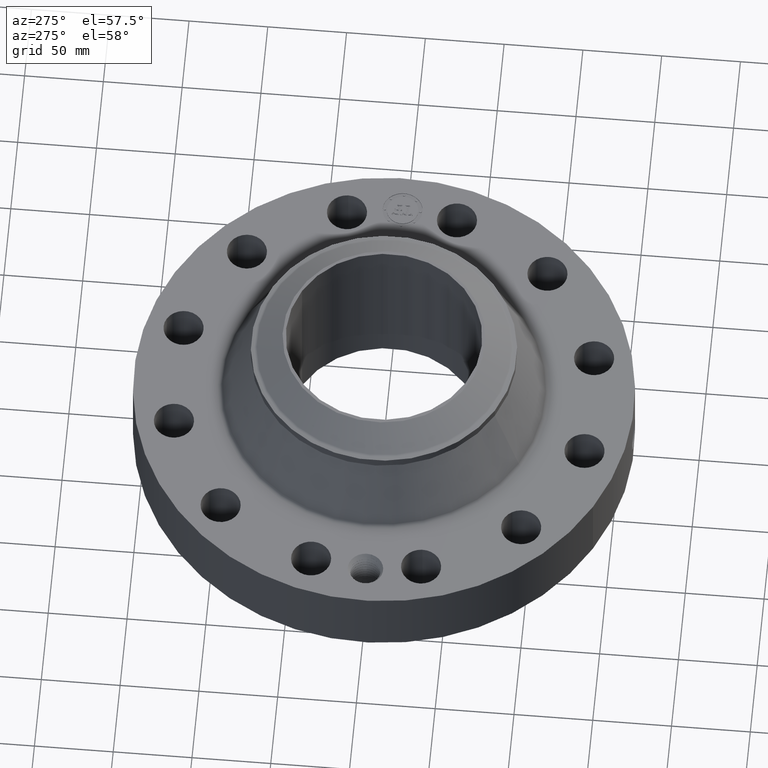
[diagram: clean part render]
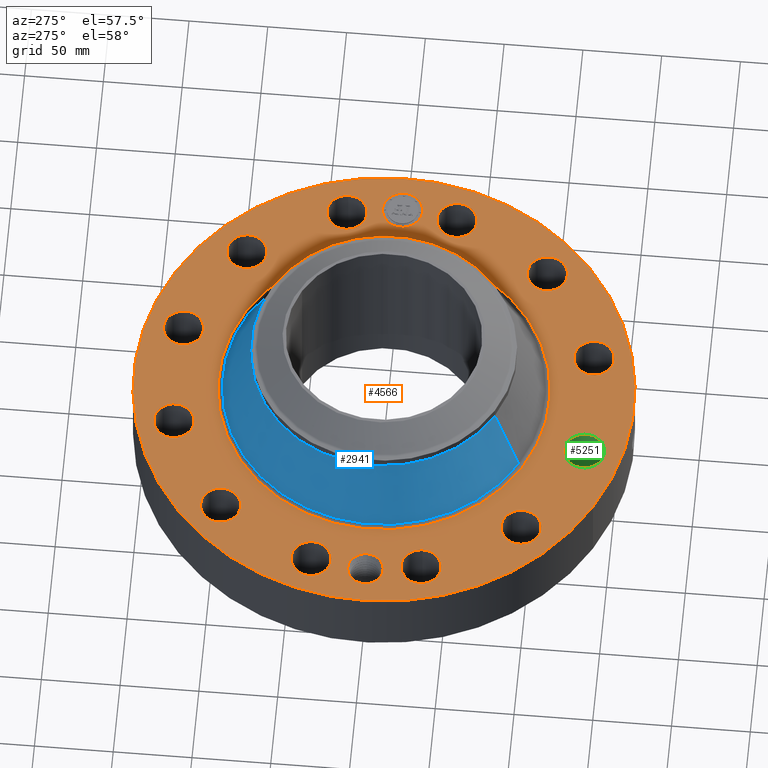
[diagram: same view with three faces highlighted in distinct colors, each labeled with its STEP entity id]
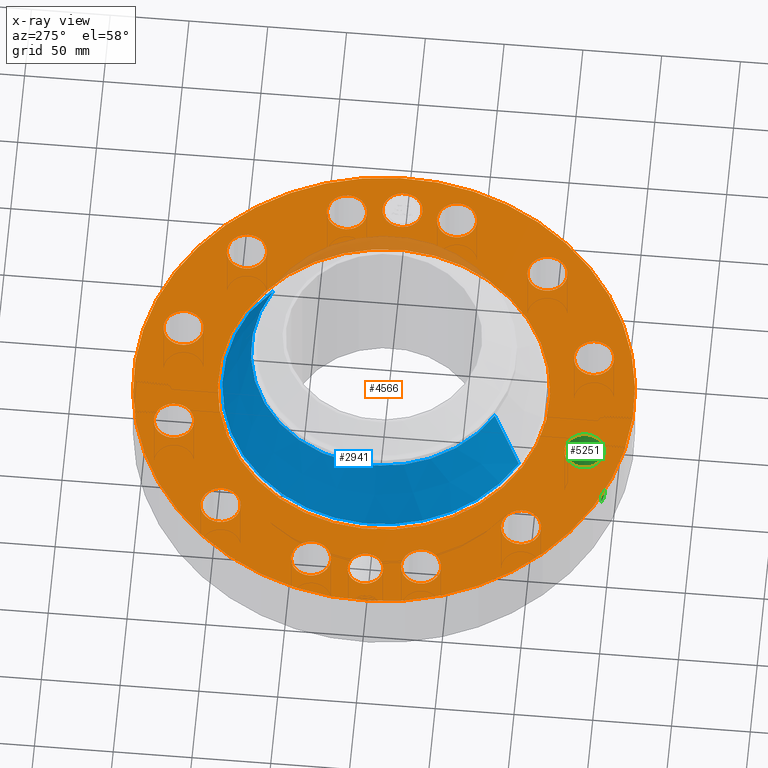
[diagram: x-ray of the same camera — body ghosted, the three highlighted faces saturated]
A machine part, auxiliary view with three faces highlighted in distinct colors.
The next image is the same camera in x-ray (body ghosted, the three faces saturated) — at least one of them is partly hidden behind the body in this view.
Their STEP definitions:

[orange] entity #4566 — the highlighted planar face has unit normal (0, 0, -1).
#3574=AXIS2_PLACEMENT_3D('Circle Axis2P3D',#3572,#3573,$) ;
#3600=AXIS2_PLACEMENT_3D('Circle Axis2P3D',#3598,#3599,$) ;
#4290=AXIS2_PLACEMENT_3D('Plane Axis2P3D',#4287,#4288,#4289) ;
#4294=AXIS2_PLACEMENT_3D('Circle Axis2P3D',#4292,#4293,$) ;
#4303=AXIS2_PLACEMENT_3D('Circle Axis2P3D',#4301,#4302,$) ;
#4312=AXIS2_PLACEMENT_3D('Circle Axis2P3D',#4310,#4311,$) ;
#4321=AXIS2_PLACEMENT_3D('Circle Axis2P3D',#4319,#4320,$) ;
#4330=AXIS2_PLACEMENT_3D('Circle Axis2P3D',#4328,#4329,$) ;
#4339=AXIS2_PLACEMENT_3D('Circle Axis2P3D',#4337,#4338,$) ;
#4352=AXIS2_PLACEMENT_3D('Circle Axis2P3D',#4350,#4351,$) ;
#4361=AXIS2_PLACEMENT_3D('Circle Axis2P3D',#4359,#4360,$) ;
#4370=AXIS2_PLACEMENT_3D('Circle Axis2P3D',#4368,#4369,$) ;
#4379=AXIS2_PLACEMENT_3D('Circle Axis2P3D',#4377,#4378,$) ;
#4388=AXIS2_PLACEMENT_3D('Circle Axis2P3D',#4386,#4387,$) ;
#4397=AXIS2_PLACEMENT_3D('Circle Axis2P3D',#4395,#4396,$) ;
#4406=AXIS2_PLACEMENT_3D('Circle Axis2P3D',#4404,#4405,$) ;
#4415=AXIS2_PLACEMENT_3D('Circle Axis2P3D',#4413,#4414,$) ;
#4424=AXIS2_PLACEMENT_3D('Circle Axis2P3D',#4422,#4423,$) ;
#4433=AXIS2_PLACEMENT_3D('Circle Axis2P3D',#4431,#4432,$) ;
#4442=AXIS2_PLACEMENT_3D('Circle Axis2P3D',#4440,#4441,$) ;
#4451=AXIS2_PLACEMENT_3D('Circle Axis2P3D',#4449,#4450,$) ;
#4460=AXIS2_PLACEMENT_3D('Circle Axis2P3D',#4458,#4459,$) ;
#4469=AXIS2_PLACEMENT_3D('Circle Axis2P3D',#4467,#4468,$) ;
#4478=AXIS2_PLACEMENT_3D('Circle Axis2P3D',#4476,#4477,$) ;
#4487=AXIS2_PLACEMENT_3D('Circle Axis2P3D',#4485,#4486,$) ;
#4496=AXIS2_PLACEMENT_3D('Circle Axis2P3D',#4494,#4495,$) ;
#4505=AXIS2_PLACEMENT_3D('Circle Axis2P3D',#4503,#4504,$) ;
#4514=AXIS2_PLACEMENT_3D('Circle Axis2P3D',#4512,#4513,$) ;
#4523=AXIS2_PLACEMENT_3D('Circle Axis2P3D',#4521,#4522,$) ;
#4532=AXIS2_PLACEMENT_3D('Circle Axis2P3D',#4530,#4531,$) ;
#4541=AXIS2_PLACEMENT_3D('Circle Axis2P3D',#4539,#4540,$) ;
#4550=AXIS2_PLACEMENT_3D('Circle Axis2P3D',#4548,#4549,$) ;
#4559=AXIS2_PLACEMENT_3D('Circle Axis2P3D',#4557,#4558,$) ;
#3572=CARTESIAN_POINT('Axis2P3D Location',(0.,0.,1.93200000001)) ;
#3576=CARTESIAN_POINT('Vertex',(-1.98379266045,-3.63130810738,1.93200000001)) ;
#3578=CARTESIAN_POINT('Vertex',(1.98379266045,3.63130810738,1.93200000001)) ;
#3598=CARTESIAN_POINT('Axis2P3D Location',(0.,0.,1.93200000001)) ;
#4287=CARTESIAN_POINT('Axis2P3D Location',(0.,6.25000000003,1.93200000001)) ;
#4292=CARTESIAN_POINT('Axis2P3D Location',(0.,0.,1.93200000001)) ;
#4296=CARTESIAN_POINT('Vertex',(2.99640961629,5.48489101184,1.93200000001)) ;
#4298=CARTESIAN_POINT('Vertex',(-2.99640961629,-5.48489101184,1.93200000001)) ;
#4301=CARTESIAN_POINT('Axis2P3D Location',(0.,0.,1.93200000001)) ;
#4310=CARTESIAN_POINT('Axis2P3D Location',(-5.31000000002,0.,1.93200000001)) ;
#4314=CARTESIAN_POINT('Vertex',(-5.69859355843,0.212289628495,1.93200000001)) ;
#4316=CARTESIAN_POINT('Vertex',(-4.92140644161,-0.212289628495,1.93200000001)) ;
#4319=CARTESIAN_POINT('Axis2P3D Location',(-5.31000000002,0.,1.93200000001)) ;
#4328=CARTESIAN_POINT('Axis2P3D Location',(5.12906613762,-1.3743291295,1.93200000001)) ;
#4332=CARTESIAN_POINT('Vertex',(4.69027485667,-1.1346163602,1.93200000001)) ;
#4334=CARTESIAN_POINT('Vertex',(5.56785741856,-1.6140418988,1.93200000001)) ;
#4337=CARTESIAN_POINT('Axis2P3D Location',(5.12906613762,-1.3743291295,1.93200000001)) ;
#4350=CARTESIAN_POINT('Axis2P3D Location',(3.75473700812,-3.75473700812,1.93200000001)) ;
#4354=CARTESIAN_POINT('Vertex',(4.01488501972,-4.18172999642,1.93200000001)) ;
#4356=CARTESIAN_POINT('Vertex',(3.49458899651,-3.32774401981,1.93200000001)) ;
#4359=CARTESIAN_POINT('Axis2P3D Location',(3.75473700812,-3.75473700812,1.93200000001)) ;
#4368=CARTESIAN_POINT('Axis2P3D Location',(1.3743291295,-5.12906613762,1.93200000001)) ;
#4372=CARTESIAN_POINT('Vertex',(1.38612742215,-5.62892691853,1.93200000001)) ;
#4374=CARTESIAN_POINT('Vertex',(1.36253083685,-4.6292053567,1.93200000001)) ;
#4377=CARTESIAN_POINT('Axis2P3D Location',(1.3743291295,-5.12906613762,1.93200000001)) ;
#4386=CARTESIAN_POINT('Axis2P3D Location',(-1.3743291295,-5.12906613762,1.93200000001)) ;
#4390=CARTESIAN_POINT('Vertex',(-1.6140418988,-5.56785741856,1.93200000001)) ;
#4392=CARTESIAN_POINT('Vertex',(-1.1346163602,-4.69027485667,1.93200000001)) ;
#4395=CARTESIAN_POINT('Axis2P3D Location',(-1.3743291295,-5.12906613762,1.93200000001)) ;
#4404=CARTESIAN_POINT('Axis2P3D Location',(-3.75473700812,-3.75473700812,1.93200000001)) ;
#4408=CARTESIAN_POINT('Vertex',(-4.18172999642,-4.01488501972,1.93200000001)) ;
#4410=CARTESIAN_POINT('Vertex',(-3.32774401981,-3.49458899651,1.93200000001)) ;
#4413=CARTESIAN_POINT('Axis2P3D Location',(-3.75473700812,-3.75473700812,1.93200000001)) ;
#4422=CARTESIAN_POINT('Axis2P3D Location',(-5.12906613762,-1.3743291295,1.93200000001)) ;
#4426=CARTESIAN_POINT('Vertex',(-5.62892691853,-1.38612742215,1.93200000001)) ;
#4428=CARTESIAN_POINT('Vertex',(-4.6292053567,-1.36253083685,1.93200000001)) ;
#4431=CARTESIAN_POINT('Axis2P3D Location',(-5.12906613762,-1.3743291295,1.93200000001)) ;
#4440=CARTESIAN_POINT('Axis2P3D Location',(-5.12906613762,1.3743291295,1.93200000001)) ;
#4444=CARTESIAN_POINT('Vertex',(-5.56785741856,1.6140418988,1.93200000001)) ;
#4446=CARTESIAN_POINT('Vertex',(-4.69027485667,1.1346163602,1.93200000001)) ;
#4449=CARTESIAN_POINT('Axis2P3D Location',(-5.12906613762,1.3743291295,1.93200000001)) ;
#4458=CARTESIAN_POINT('Axis2P3D Location',(-3.75473700812,3.75473700812,1.93200000001)) ;
#4462=CARTESIAN_POINT('Vertex',(-4.01488501972,4.18172999642,1.93200000001)) ;
#4464=CARTESIAN_POINT('Vertex',(-3.49458899651,3.32774401981,1.93200000001)) ;
#4467=CARTESIAN_POINT('Axis2P3D Location',(-3.75473700812,3.75473700812,1.93200000001)) ;
#4476=CARTESIAN_POINT('Axis2P3D Location',(-1.3743291295,5.12906613762,1.93200000001)) ;
#4480=CARTESIAN_POINT('Vertex',(-1.38612742215,5.62892691853,1.93200000001)) ;
#4482=CARTESIAN_POINT('Vertex',(-1.36253083685,4.6292053567,1.93200000001)) ;
#4485=CARTESIAN_POINT('Axis2P3D Location',(-1.3743291295,5.12906613762,1.93200000001)) ;
#4494=CARTESIAN_POINT('Axis2P3D Location',(1.3743291295,5.12906613762,1.93200000001)) ;
#4498=CARTESIAN_POINT('Vertex',(1.6140418988,5.56785741856,1.93200000001)) ;
#4500=CARTESIAN_POINT('Vertex',(1.1346163602,4.69027485667,1.93200000001)) ;
#4503=CARTESIAN_POINT('Axis2P3D Location',(1.3743291295,5.12906613762,1.93200000001)) ;
#4512=CARTESIAN_POINT('Axis2P3D Location',(3.75473700812,3.75473700812,1.93200000001)) ;
#4516=CARTESIAN_POINT('Vertex',(4.18172999642,4.01488501972,1.93200000001)) ;
#4518=CARTESIAN_POINT('Vertex',(3.32774401981,3.49458899651,1.93200000001)) ;
#4521=CARTESIAN_POINT('Axis2P3D Location',(3.75473700812,3.75473700812,1.93200000001)) ;
#4530=CARTESIAN_POINT('Axis2P3D Location',(5.12906613762,1.3743291295,1.93200000001)) ;
#4534=CARTESIAN_POINT('Vertex',(5.62892691853,1.38612742215,1.93200000001)) ;
#4536=CARTESIAN_POINT('Vertex',(4.6292053567,1.36253083685,1.93200000001)) ;
#4539=CARTESIAN_POINT('Axis2P3D Location',(5.12906613762,1.3743291295,1.93200000001)) ;
#4548=CARTESIAN_POINT('Axis2P3D Location',(5.31000000002,0.,1.93200000001)) ;
#4552=CARTESIAN_POINT('Vertex',(5.31000000002,0.499999995002,1.93200000001)) ;
#4554=CARTESIAN_POINT('Vertex',(5.31000000002,-0.499999995002,1.93200000001)) ;
#4557=CARTESIAN_POINT('Axis2P3D Location',(5.31000000002,0.,1.93200000001)) ;
#3573=DIRECTION('Axis2P3D Direction',(0.,0.,-0.0393700787402)) ;
#3599=DIRECTION('Axis2P3D Direction',(0.,0.,-0.0393700787402)) ;
#4288=DIRECTION('Axis2P3D Direction',(0.,0.,-0.0393700787402)) ;
#4289=DIRECTION('Axis2P3D XDirection',(0.0393700787402,0.,0.)) ;
#4293=DIRECTION('Axis2P3D Direction',(0.,0.,-0.0393700787402)) ;
#4302=DIRECTION('Axis2P3D Direction',(0.,0.,-0.0393700787402)) ;
#4311=DIRECTION('Axis2P3D Direction',(0.,0.,-0.0393700787402)) ;
#4320=DIRECTION('Axis2P3D Direction',(0.,0.,-0.0393700787402)) ;
#4329=DIRECTION('Axis2P3D Direction',(0.,0.,-0.0393700787402)) ;
#4338=DIRECTION('Axis2P3D Direction',(0.,0.,-0.0393700787402)) ;
#4351=DIRECTION('Axis2P3D Direction',(0.,0.,-0.0393700787402)) ;
#4360=DIRECTION('Axis2P3D Direction',(0.,0.,-0.0393700787402)) ;
#4369=DIRECTION('Axis2P3D Direction',(0.,0.,-0.0393700787402)) ;
#4378=DIRECTION('Axis2P3D Direction',(0.,0.,-0.0393700787402)) ;
#4387=DIRECTION('Axis2P3D Direction',(0.,0.,-0.0393700787402)) ;
#4396=DIRECTION('Axis2P3D Direction',(0.,0.,-0.0393700787402)) ;
#4405=DIRECTION('Axis2P3D Direction',(0.,0.,-0.0393700787402)) ;
#4414=DIRECTION('Axis2P3D Direction',(0.,0.,-0.0393700787402)) ;
#4423=DIRECTION('Axis2P3D Direction',(0.,0.,-0.0393700787402)) ;
#4432=DIRECTION('Axis2P3D Direction',(0.,0.,-0.0393700787402)) ;
#4441=DIRECTION('Axis2P3D Direction',(0.,0.,-0.0393700787402)) ;
#4450=DIRECTION('Axis2P3D Direction',(0.,0.,-0.0393700787402)) ;
#4459=DIRECTION('Axis2P3D Direction',(0.,0.,-0.0393700787402)) ;
#4468=DIRECTION('Axis2P3D Direction',(0.,0.,-0.0393700787402)) ;
#4477=DIRECTION('Axis2P3D Direction',(0.,0.,-0.0393700787402)) ;
#4486=DIRECTION('Axis2P3D Direction',(0.,0.,-0.0393700787402)) ;
#4495=DIRECTION('Axis2P3D Direction',(0.,0.,-0.0393700787402)) ;
#4504=DIRECTION('Axis2P3D Direction',(0.,0.,-0.0393700787402)) ;
#4513=DIRECTION('Axis2P3D Direction',(0.,0.,-0.0393700787402)) ;
#4522=DIRECTION('Axis2P3D Direction',(0.,0.,-0.0393700787402)) ;
#4531=DIRECTION('Axis2P3D Direction',(0.,0.,-0.0393700787402)) ;
#4540=DIRECTION('Axis2P3D Direction',(0.,0.,-0.0393700787402)) ;
#4549=DIRECTION('Axis2P3D Direction',(0.,0.,-0.0393700787402)) ;
#4558=DIRECTION('Axis2P3D Direction',(0.,0.,-0.0393700787402)) ;
#4307=ORIENTED_EDGE('',*,*,#4300,.F.) ;
#4308=ORIENTED_EDGE('',*,*,#4305,.F.) ;
#4325=ORIENTED_EDGE('',*,*,#4318,.T.) ;
#4326=ORIENTED_EDGE('',*,*,#4323,.T.) ;
#4343=ORIENTED_EDGE('',*,*,#4336,.T.) ;
#4344=ORIENTED_EDGE('',*,*,#4341,.T.) ;
#4347=ORIENTED_EDGE('',*,*,#3580,.T.) ;
#4348=ORIENTED_EDGE('',*,*,#3602,.T.) ;
#4365=ORIENTED_EDGE('',*,*,#4358,.T.) ;
#4366=ORIENTED_EDGE('',*,*,#4363,.T.) ;
#4383=ORIENTED_EDGE('',*,*,#4376,.T.) ;
#4384=ORIENTED_EDGE('',*,*,#4381,.T.) ;
#4401=ORIENTED_EDGE('',*,*,#4394,.T.) ;
#4402=ORIENTED_EDGE('',*,*,#4399,.T.) ;
#4419=ORIENTED_EDGE('',*,*,#4412,.T.) ;
#4420=ORIENTED_EDGE('',*,*,#4417,.T.) ;
#4437=ORIENTED_EDGE('',*,*,#4430,.T.) ;
#4438=ORIENTED_EDGE('',*,*,#4435,.T.) ;
#4455=ORIENTED_EDGE('',*,*,#4448,.T.) ;
#4456=ORIENTED_EDGE('',*,*,#4453,.T.) ;
#4473=ORIENTED_EDGE('',*,*,#4466,.T.) ;
#4474=ORIENTED_EDGE('',*,*,#4471,.T.) ;
#4491=ORIENTED_EDGE('',*,*,#4484,.T.) ;
#4492=ORIENTED_EDGE('',*,*,#4489,.T.) ;
#4509=ORIENTED_EDGE('',*,*,#4502,.T.) ;
#4510=ORIENTED_EDGE('',*,*,#4507,.T.) ;
#4527=ORIENTED_EDGE('',*,*,#4520,.T.) ;
#4528=ORIENTED_EDGE('',*,*,#4525,.T.) ;
#4545=ORIENTED_EDGE('',*,*,#4538,.T.) ;
#4546=ORIENTED_EDGE('',*,*,#4543,.T.) ;
#4563=ORIENTED_EDGE('',*,*,#4556,.T.) ;
#4564=ORIENTED_EDGE('',*,*,#4561,.T.) ;
#4327=FACE_BOUND('',#4324,.T.) ;
#4345=FACE_BOUND('',#4342,.T.) ;
#4349=FACE_BOUND('',#4346,.T.) ;
#4367=FACE_BOUND('',#4364,.T.) ;
#4385=FACE_BOUND('',#4382,.T.) ;
#4403=FACE_BOUND('',#4400,.T.) ;
#4421=FACE_BOUND('',#4418,.T.) ;
#4439=FACE_BOUND('',#4436,.T.) ;
#4457=FACE_BOUND('',#4454,.T.) ;
#4475=FACE_BOUND('',#4472,.T.) ;
#4493=FACE_BOUND('',#4490,.T.) ;
#4511=FACE_BOUND('',#4508,.T.) ;
#4529=FACE_BOUND('',#4526,.T.) ;
#4547=FACE_BOUND('',#4544,.T.) ;
#4565=FACE_BOUND('',#4562,.T.) ;
#4566=ADVANCED_FACE('PartBody',(#4309,#4327,#4345,#4349,#4367,#4385,#4403,#4421,#4439,#4457,#4475,#4493,#4511,#4529,#4547,#4565),#4291,.F.) ;
#3575=CIRCLE('generated circle',#3574,4.1378535366) ;
#3601=CIRCLE('generated circle',#3600,4.1378535366) ;
#4295=CIRCLE('generated circle',#4294,6.25000000003) ;
#4304=CIRCLE('generated circle',#4303,6.25000000003) ;
#4313=CIRCLE('generated circle',#4312,0.442800000002) ;
#4322=CIRCLE('generated circle',#4321,0.442800000002) ;
#4331=CIRCLE('generated circle',#4330,0.500000000002) ;
#4340=CIRCLE('generated circle',#4339,0.500000000002) ;
#4353=CIRCLE('generated circle',#4352,0.500000000002) ;
#4362=CIRCLE('generated circle',#4361,0.500000000002) ;
#4371=CIRCLE('generated circle',#4370,0.500000000002) ;
#4380=CIRCLE('generated circle',#4379,0.500000000002) ;
#4389=CIRCLE('generated circle',#4388,0.500000000002) ;
#4398=CIRCLE('generated circle',#4397,0.500000000002) ;
#4407=CIRCLE('generated circle',#4406,0.500000000002) ;
#4416=CIRCLE('generated circle',#4415,0.500000000002) ;
#4425=CIRCLE('generated circle',#4424,0.500000000002) ;
#4434=CIRCLE('generated circle',#4433,0.500000000002) ;
#4443=CIRCLE('generated circle',#4442,0.500000000002) ;
#4452=CIRCLE('generated circle',#4451,0.500000000002) ;
#4461=CIRCLE('generated circle',#4460,0.500000000002) ;
#4470=CIRCLE('generated circle',#4469,0.500000000002) ;
#4479=CIRCLE('generated circle',#4478,0.500000000002) ;
#4488=CIRCLE('generated circle',#4487,0.500000000002) ;
#4497=CIRCLE('generated circle',#4496,0.500000000002) ;
#4506=CIRCLE('generated circle',#4505,0.500000000002) ;
#4515=CIRCLE('generated circle',#4514,0.500000000002) ;
#4524=CIRCLE('generated circle',#4523,0.500000000002) ;
#4533=CIRCLE('generated circle',#4532,0.500000000002) ;
#4542=CIRCLE('generated circle',#4541,0.500000000002) ;
#4551=CIRCLE('generated circle',#4550,0.499999995002) ;
#4560=CIRCLE('generated circle',#4559,0.499999995002) ;
#3580=EDGE_CURVE('',#3577,#3579,#3575,.T.) ;
#3602=EDGE_CURVE('',#3579,#3577,#3601,.T.) ;
#4300=EDGE_CURVE('',#4297,#4299,#4295,.T.) ;
#4305=EDGE_CURVE('',#4299,#4297,#4304,.T.) ;
#4318=EDGE_CURVE('',#4315,#4317,#4313,.T.) ;
#4323=EDGE_CURVE('',#4317,#4315,#4322,.T.) ;
#4336=EDGE_CURVE('',#4333,#4335,#4331,.T.) ;
#4341=EDGE_CURVE('',#4335,#4333,#4340,.T.) ;
#4358=EDGE_CURVE('',#4355,#4357,#4353,.T.) ;
#4363=EDGE_CURVE('',#4357,#4355,#4362,.T.) ;
#4376=EDGE_CURVE('',#4373,#4375,#4371,.T.) ;
#4381=EDGE_CURVE('',#4375,#4373,#4380,.T.) ;
#4394=EDGE_CURVE('',#4391,#4393,#4389,.T.) ;
#4399=EDGE_CURVE('',#4393,#4391,#4398,.T.) ;
#4412=EDGE_CURVE('',#4409,#4411,#4407,.T.) ;
#4417=EDGE_CURVE('',#4411,#4409,#4416,.T.) ;
#4430=EDGE_CURVE('',#4427,#4429,#4425,.T.) ;
#4435=EDGE_CURVE('',#4429,#4427,#4434,.T.) ;
#4448=EDGE_CURVE('',#4445,#4447,#4443,.T.) ;
#4453=EDGE_CURVE('',#4447,#4445,#4452,.T.) ;
#4466=EDGE_CURVE('',#4463,#4465,#4461,.T.) ;
#4471=EDGE_CURVE('',#4465,#4463,#4470,.T.) ;
#4484=EDGE_CURVE('',#4481,#4483,#4479,.T.) ;
#4489=EDGE_CURVE('',#4483,#4481,#4488,.T.) ;
#4502=EDGE_CURVE('',#4499,#4501,#4497,.T.) ;
#4507=EDGE_CURVE('',#4501,#4499,#4506,.T.) ;
#4520=EDGE_CURVE('',#4517,#4519,#4515,.T.) ;
#4525=EDGE_CURVE('',#4519,#4517,#4524,.T.) ;
#4538=EDGE_CURVE('',#4535,#4537,#4533,.T.) ;
#4543=EDGE_CURVE('',#4537,#4535,#4542,.T.) ;
#4556=EDGE_CURVE('',#4553,#4555,#4551,.T.) ;
#4561=EDGE_CURVE('',#4555,#4553,#4560,.T.) ;
#4306=EDGE_LOOP('',(#4307,#4308)) ;
#4324=EDGE_LOOP('',(#4325,#4326)) ;
#4342=EDGE_LOOP('',(#4343,#4344)) ;
#4346=EDGE_LOOP('',(#4347,#4348)) ;
#4364=EDGE_LOOP('',(#4365,#4366)) ;
#4382=EDGE_LOOP('',(#4383,#4384)) ;
#4400=EDGE_LOOP('',(#4401,#4402)) ;
#4418=EDGE_LOOP('',(#4419,#4420)) ;
#4436=EDGE_LOOP('',(#4437,#4438)) ;
#4454=EDGE_LOOP('',(#4455,#4456)) ;
#4472=EDGE_LOOP('',(#4473,#4474)) ;
#4490=EDGE_LOOP('',(#4491,#4492)) ;
#4508=EDGE_LOOP('',(#4509,#4510)) ;
#4526=EDGE_LOOP('',(#4527,#4528)) ;
#4544=EDGE_LOOP('',(#4545,#4546)) ;
#4562=EDGE_LOOP('',(#4563,#4564)) ;
#4309=FACE_OUTER_BOUND('',#4306,.T.) ;
#4291=PLANE('',#4290) ;
#3577=VERTEX_POINT('',#3576) ;
#3579=VERTEX_POINT('',#3578) ;
#4297=VERTEX_POINT('',#4296) ;
#4299=VERTEX_POINT('',#4298) ;
#4315=VERTEX_POINT('',#4314) ;
#4317=VERTEX_POINT('',#4316) ;
#4333=VERTEX_POINT('',#4332) ;
#4335=VERTEX_POINT('',#4334) ;
#4355=VERTEX_POINT('',#4354) ;
#4357=VERTEX_POINT('',#4356) ;
#4373=VERTEX_POINT('',#4372) ;
#4375=VERTEX_POINT('',#4374) ;
#4391=VERTEX_POINT('',#4390) ;
#4393=VERTEX_POINT('',#4392) ;
#4409=VERTEX_POINT('',#4408) ;
#4411=VERTEX_POINT('',#4410) ;
#4427=VERTEX_POINT('',#4426) ;
#4429=VERTEX_POINT('',#4428) ;
#4445=VERTEX_POINT('',#4444) ;
#4447=VERTEX_POINT('',#4446) ;
#4463=VERTEX_POINT('',#4462) ;
#4465=VERTEX_POINT('',#4464) ;
#4481=VERTEX_POINT('',#4480) ;
#4483=VERTEX_POINT('',#4482) ;
#4499=VERTEX_POINT('',#4498) ;
#4501=VERTEX_POINT('',#4500) ;
#4517=VERTEX_POINT('',#4516) ;
#4519=VERTEX_POINT('',#4518) ;
#4535=VERTEX_POINT('',#4534) ;
#4537=VERTEX_POINT('',#4536) ;
#4553=VERTEX_POINT('',#4552) ;
#4555=VERTEX_POINT('',#4554) ;

[blue] entity #2941 — the highlighted conical surface has half-angle 24.051 deg.
#2195=AXIS2_PLACEMENT_3D('Circle Axis2P3D',#2193,#2194,$) ;
#2914=AXIS2_PLACEMENT_3D('Cone Axis2P3D',#2911,#2912,#2913) ;
#2918=AXIS2_PLACEMENT_3D('Circle Axis2P3D',#2916,#2917,$) ;
#2190=CARTESIAN_POINT('Vertex',(1.58929566048,2.90918619268,3.60132502705)) ;
#2193=CARTESIAN_POINT('Axis2P3D Location',(0.,0.,3.60132502705)) ;
#2197=CARTESIAN_POINT('Vertex',(-1.58929566048,-2.90918619268,3.60132502705)) ;
#2911=CARTESIAN_POINT('Axis2P3D Location',(0.,0.,3.60132502705)) ;
#2916=CARTESIAN_POINT('Axis2P3D Location',(0.,0.,2.00309472888)) ;
#2920=CARTESIAN_POINT('Vertex',(-1.93125612041,-3.5351406159,2.00309472888)) ;
#2922=CARTESIAN_POINT('Vertex',(1.93125612041,3.5351406159,2.00309472888)) ;
#2925=CARTESIAN_POINT('Line Origine',(-1.76027589045,-3.22216340429,2.80220987797)) ;
#2930=CARTESIAN_POINT('Line Origine',(1.76027589045,3.22216340429,2.80220987797)) ;
#2194=DIRECTION('Axis2P3D Direction',(0.,0.,-0.0393700787402)) ;
#2912=DIRECTION('Axis2P3D Direction',(0.,0.,-0.0393700787402)) ;
#2913=DIRECTION('Axis2P3D XDirection',(0.0188750212049,0.0345504945626,0.)) ;
#2917=DIRECTION('Axis2P3D Direction',(0.,0.,-0.0393700787402)) ;
#2926=DIRECTION('Vector Direction',(-0.00769240024621,-0.0140808442012,-0.035952189155)) ;
#2931=DIRECTION('Vector Direction',(0.00769240024621,0.0140808442012,-0.035952189155)) ;
#2927=VECTOR('Line Direction',#2926,0.0393700787402) ;
#2932=VECTOR('Line Direction',#2931,0.0393700787402) ;
#2936=ORIENTED_EDGE('',*,*,#2924,.F.) ;
#2937=ORIENTED_EDGE('',*,*,#2929,.T.) ;
#2938=ORIENTED_EDGE('',*,*,#2199,.T.) ;
#2939=ORIENTED_EDGE('',*,*,#2934,.F.) ;
#2941=ADVANCED_FACE('PartBody',(#2940),#2915,.T.) ;
#2196=CIRCLE('generated circle',#2195,3.31500000001) ;
#2919=CIRCLE('generated circle',#2918,4.02827126406) ;
#2915=CONICAL_SURFACE('Cone',#2914,3.31500000001,0.419762875736) ;
#2199=EDGE_CURVE('',#2198,#2191,#2196,.T.) ;
#2924=EDGE_CURVE('',#2921,#2923,#2919,.T.) ;
#2929=EDGE_CURVE('',#2921,#2198,#2928,.F.) ;
#2934=EDGE_CURVE('',#2923,#2191,#2933,.F.) ;
#2935=EDGE_LOOP('',(#2936,#2937,#2938,#2939)) ;
#2940=FACE_OUTER_BOUND('',#2935,.T.) ;
#2928=LINE('Line',#2925,#2927) ;
#2933=LINE('Line',#2930,#2932) ;
#2191=VERTEX_POINT('',#2190) ;
#2198=VERTEX_POINT('',#2197) ;
#2921=VERTEX_POINT('',#2920) ;
#2923=VERTEX_POINT('',#2922) ;

[green] entity #5251 — the highlighted cylindrical surface (edge-blend (fillet) strip) has radius 12.7 mm, axis along (0, -0, -1).
#3939=AXIS2_PLACEMENT_3D('Circle Axis2P3D',#3937,#3938,$) ;
#4397=AXIS2_PLACEMENT_3D('Circle Axis2P3D',#4395,#4396,$) ;
#5233=AXIS2_PLACEMENT_3D('Cylinder Axis2P3D',#5230,#5231,#5232) ;
#3937=CARTESIAN_POINT('Axis2P3D Location',(-1.3743291295,-5.12906613762,0.)) ;
#3941=CARTESIAN_POINT('Vertex',(-1.1346163602,-4.69027485667,0.)) ;
#3943=CARTESIAN_POINT('Vertex',(-1.6140418988,-5.56785741856,0.)) ;
#4390=CARTESIAN_POINT('Vertex',(-1.6140418988,-5.56785741856,1.93200000001)) ;
#4392=CARTESIAN_POINT('Vertex',(-1.1346163602,-4.69027485667,1.93200000001)) ;
#4395=CARTESIAN_POINT('Axis2P3D Location',(-1.3743291295,-5.12906613762,1.93200000001)) ;
#5230=CARTESIAN_POINT('Axis2P3D Location',(-1.3743291295,-5.12906613762,1.92806299213)) ;
#5235=CARTESIAN_POINT('Line Origine',(-1.1346163602,-4.69027485667,0.966000000004)) ;
#5240=CARTESIAN_POINT('Line Origine',(-1.6140418988,-5.56785741856,0.966000000004)) ;
#3938=DIRECTION('Axis2P3D Direction',(0.,0.,-0.0393700787402)) ;
#4396=DIRECTION('Axis2P3D Direction',(0.,0.,-0.0393700787402)) ;
#5231=DIRECTION('Axis2P3D Direction',(0.,-0.,-0.0393700787402)) ;
#5232=DIRECTION('Axis2P3D XDirection',(-0.0188750212049,-0.0345504945626,0.)) ;
#5236=DIRECTION('Vector Direction',(0.,0.,-0.0393700787402)) ;
#5241=DIRECTION('Vector Direction',(0.,0.,-0.0393700787402)) ;
#5237=VECTOR('Line Direction',#5236,0.0393700787402) ;
#5242=VECTOR('Line Direction',#5241,0.0393700787402) ;
#5246=ORIENTED_EDGE('',*,*,#5239,.F.) ;
#5247=ORIENTED_EDGE('',*,*,#3945,.T.) ;
#5248=ORIENTED_EDGE('',*,*,#5244,.T.) ;
#5249=ORIENTED_EDGE('',*,*,#4399,.F.) ;
#5251=ADVANCED_FACE('PartBody',(#5250),#5234,.F.) ;
#3940=CIRCLE('generated circle',#3939,0.500000000002) ;
#4398=CIRCLE('generated circle',#4397,0.500000000002) ;
#5234=CYLINDRICAL_SURFACE('generated cylinder',#5233,0.500000000002) ;
#3945=EDGE_CURVE('',#3942,#3944,#3940,.T.) ;
#4399=EDGE_CURVE('',#4393,#4391,#4398,.T.) ;
#5239=EDGE_CURVE('',#3942,#4393,#5238,.F.) ;
#5244=EDGE_CURVE('',#3944,#4391,#5243,.F.) ;
#5245=EDGE_LOOP('',(#5246,#5247,#5248,#5249)) ;
#5250=FACE_OUTER_BOUND('',#5245,.T.) ;
#5238=LINE('Line',#5235,#5237) ;
#5243=LINE('Line',#5240,#5242) ;
#3942=VERTEX_POINT('',#3941) ;
#3944=VERTEX_POINT('',#3943) ;
#4391=VERTEX_POINT('',#4390) ;
#4393=VERTEX_POINT('',#4392) ;